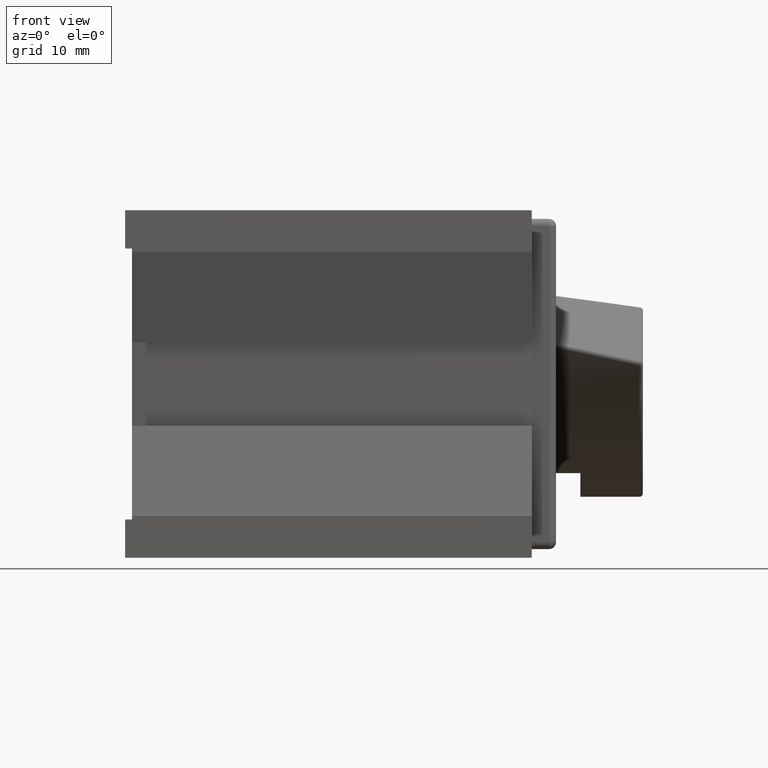
[diagram: clean part render]
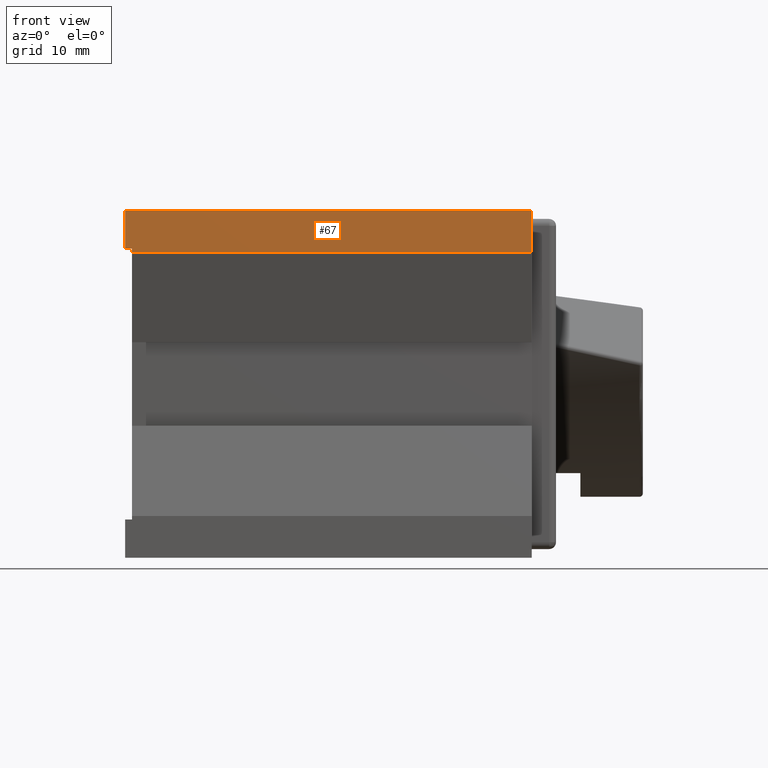
[diagram: same view with one face highlighted and labeled with its STEP entity id]
A machine part, front view. The second image highlights one B-rep face of the part: STEP entity #67.
In plain terms, the highlighted planar face has unit normal (0, 1, 0).
Its self-contained STEP definition (entity closure, byte-faithful):
#1 = CARTESIAN_POINT ( 'NONE',  ( 0.000000000000000000, -27.50000000000000000, 0.000000000000000000 ) ) ;
#5 = DIRECTION ( 'NONE',  ( -1.000000000000000000, -0.000000000000000000, 0.000000000000000000 ) ) ;
#43 = VERTEX_POINT ( 'NONE', #826 ) ;
#67 = ADVANCED_FACE ( 'NONE', ( #2698 ), #3552, .F. ) ;
#105 = EDGE_CURVE ( 'NONE', #399, #209, #779, .T. ) ;
#172 = VERTEX_POINT ( 'NONE', #4835 ) ;
#209 = VERTEX_POINT ( 'NONE', #3312 ) ;
#282 = ORIENTED_EDGE ( 'NONE', *, *, #3269, .T. ) ;
#392 = DIRECTION ( 'NONE',  ( 0.000000000000000000, -0.000000000000000000, 1.000000000000000000 ) ) ;
#399 = VERTEX_POINT ( 'NONE', #2814 ) ;
#427 = CARTESIAN_POINT ( 'NONE',  ( -29.25000000000000000, -27.50000000000000000, -25.00000000000000355 ) ) ;
#578 = CARTESIAN_POINT ( 'NONE',  ( 29.25000000000000000, -27.50000000000000000, -25.00000000000000355 ) ) ;
#779 = LINE ( 'NONE', #5061, #3300 ) ;
#789 = DIRECTION ( 'NONE',  ( -1.387778780781445922E-16, 0.000000000000000000, -1.000000000000000000 ) ) ;
#826 = CARTESIAN_POINT ( 'NONE',  ( -29.25000000000000000, -27.50000000000000000, 19.49999999999998934 ) ) ;
#864 = EDGE_CURVE ( 'NONE', #4907, #43, #2562, .T. ) ;
#983 = ORIENTED_EDGE ( 'NONE', *, *, #864, .F. ) ;
#1028 = CARTESIAN_POINT ( 'NONE',  ( 0.000000000000000000, -27.50000000000000000, 19.49999999999998934 ) ) ;
#1082 = VERTEX_POINT ( 'NONE', #2354 ) ;
#1189 = DIRECTION ( 'NONE',  ( 0.000000000000000000, 1.000000000000000000, 0.000000000000000000 ) ) ;
#1194 = EDGE_LOOP ( 'NONE', ( #1507, #2783, #282, #4135, #3438, #983 ) ) ;
#1372 = CARTESIAN_POINT ( 'NONE',  ( -28.24999999999999289, -27.50000000000000000, 19.49999999999998934 ) ) ;
#1400 = VECTOR ( 'NONE', #4496, 1000.000000000000000 ) ;
#1507 = ORIENTED_EDGE ( 'NONE', *, *, #3921, .T. ) ;
#1543 = DIRECTION ( 'NONE',  ( -1.000000000000000000, 0.000000000000000000, -0.000000000000000000 ) ) ;
#1644 = VECTOR ( 'NONE', #4040, 1000.000000000000000 ) ;
#2044 = VECTOR ( 'NONE', #789, 1000.000000000000000 ) ;
#2112 = LINE ( 'NONE', #578, #1400 ) ;
#2229 = DIRECTION ( 'NONE',  ( -1.000000000000000000, -0.000000000000000000, 0.000000000000000000 ) ) ;
#2354 = CARTESIAN_POINT ( 'NONE',  ( -28.24999999999999289, -27.49999999999999645, 19.00000000000000711 ) ) ;
#2398 = CARTESIAN_POINT ( 'NONE',  ( -28.24999999999999289, -27.50000000000000000, 19.49999999999998934 ) ) ;
#2523 = EDGE_CURVE ( 'NONE', #209, #43, #4652, .T. ) ;
#2562 = LINE ( 'NONE', #1028, #4740 ) ;
#2698 = FACE_OUTER_BOUND ( 'NONE', #1194, .T. ) ;
#2783 = ORIENTED_EDGE ( 'NONE', *, *, #3861, .F. ) ;
#2814 = CARTESIAN_POINT ( 'NONE',  ( 29.25000000000001066, -27.50000000000000000, 24.99999999999999645 ) ) ;
#2896 = LINE ( 'NONE', #1372, #1644 ) ;
#3212 = CARTESIAN_POINT ( 'NONE',  ( 0.000000000000000000, -27.50000000000000000, 19.00000000000000355 ) ) ;
#3269 = EDGE_CURVE ( 'NONE', #172, #399, #2112, .T. ) ;
#3300 = VECTOR ( 'NONE', #1543, 1000.000000000000000 ) ;
#3312 = CARTESIAN_POINT ( 'NONE',  ( -29.25000000000000000, -27.50000000000000000, 24.99999999999999645 ) ) ;
#3438 = ORIENTED_EDGE ( 'NONE', *, *, #2523, .T. ) ;
#3552 = PLANE ( 'NONE',  #4203 ) ;
#3620 = LINE ( 'NONE', #3212, #4834 ) ;
#3861 = EDGE_CURVE ( 'NONE', #172, #1082, #3620, .T. ) ;
#3921 = EDGE_CURVE ( 'NONE', #4907, #1082, #2896, .T. ) ;
#4040 = DIRECTION ( 'NONE',  ( 0.000000000000000000, 0.000000000000000000, -1.000000000000000000 ) ) ;
#4135 = ORIENTED_EDGE ( 'NONE', *, *, #105, .T. ) ;
#4203 = AXIS2_PLACEMENT_3D ( 'NONE', #1, #1189, #392 ) ;
#4496 = DIRECTION ( 'NONE',  ( 2.081668171172168513E-16, 0.000000000000000000, 1.000000000000000000 ) ) ;
#4652 = LINE ( 'NONE', #427, #2044 ) ;
#4740 = VECTOR ( 'NONE', #2229, 1000.000000000000000 ) ;
#4834 = VECTOR ( 'NONE', #5, 1000.000000000000000 ) ;
#4835 = CARTESIAN_POINT ( 'NONE',  ( 29.25000000000001066, -27.50000000000000000, 19.00000000000000355 ) ) ;
#4907 = VERTEX_POINT ( 'NONE', #2398 ) ;
#5061 = CARTESIAN_POINT ( 'NONE',  ( -29.25000000000000000, -27.50000000000000000, 24.99999999999999645 ) ) ;